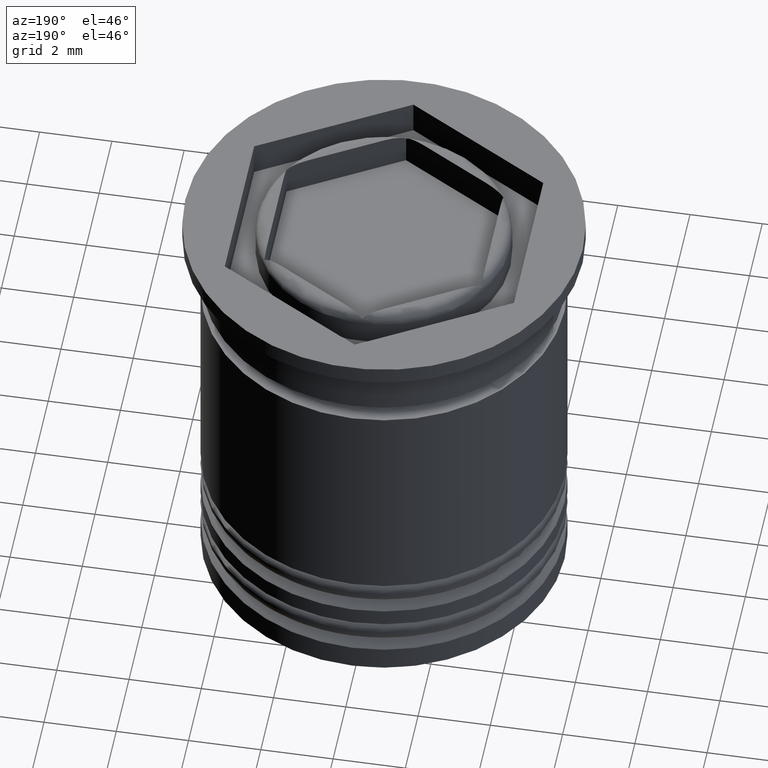
[diagram: clean part render]
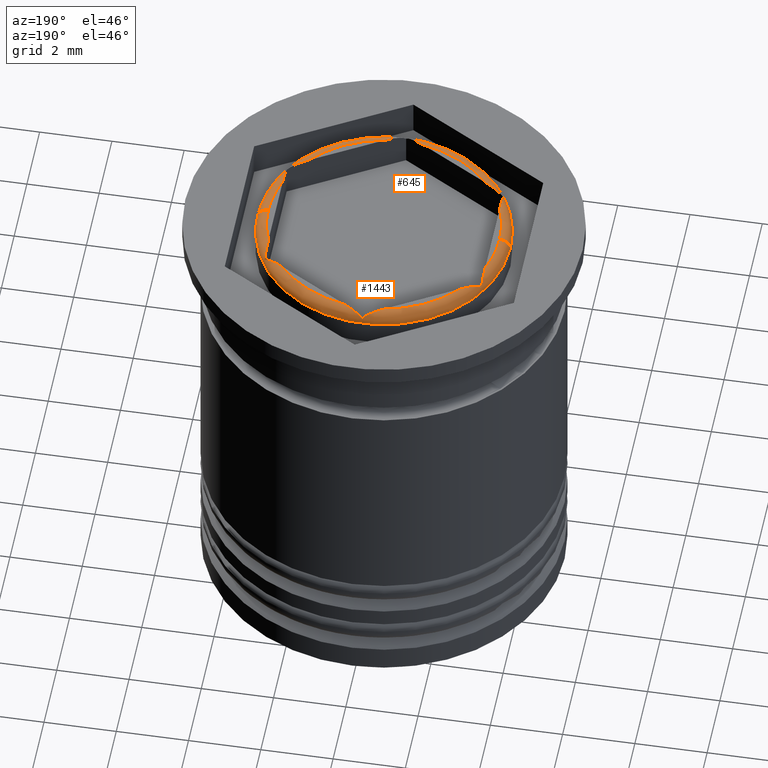
[diagram: same view with one multi-face feature highlighted, each face labeled with its STEP entity id]
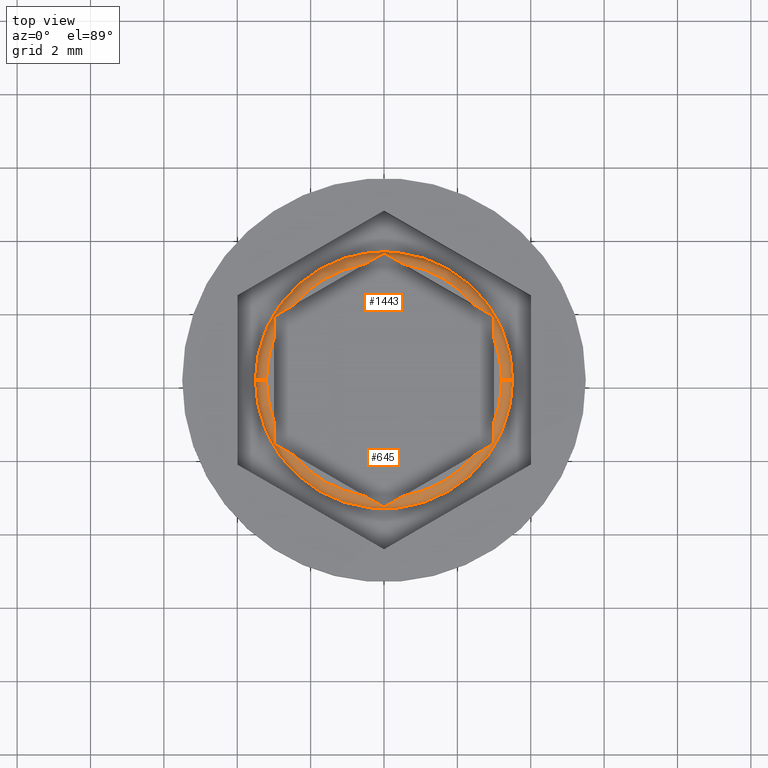
[diagram: same view with one multi-face feature highlighted, each face labeled with its STEP entity id]
A machine part, auxiliary view. The highlighted faces form ONE feature: a constant-radius fillet chain: 2 tangent blend faces with common blend radius 0.3 mm. The faces share edges in the B-rep.
A second angle (top view) of the same feature is appended — it is thin or edge-on in the first view.
Their STEP definitions:
[1] entity #1443 (Torus):
#18 = CARTESIAN_POINT ( 'NONE',  ( -2.652575849777251804, 1.932636234222957494, -0.006590008935844869110 ) ) ;
#19 = EDGE_LOOP ( 'NONE', ( #35, #1768, #1431, #159, #1466, #1972, #477, #125, #1951, #1341, #999, #1207, #974 ) ) ;
#21 = CARTESIAN_POINT ( 'NONE',  ( 0.03488713331826957115, 3.443959519325197949, -0.1203145750809056364 ) ) ;
#34 = CARTESIAN_POINT ( 'NONE',  ( 0.3474241502227468081, 3.263516188483674973, -0.006590008935845257688 ) ) ;
#35 = ORIENTED_EDGE ( 'NONE', *, *, #711, .F. ) ;
#43 = EDGE_CURVE ( 'NONE', #121, #774, #1318, .T. ) ;
#106 = AXIS2_PLACEMENT_3D ( 'NONE', #362, #689, #968 ) ;
#117 = DIRECTION ( 'NONE',  ( -0.000000000000000000, -0.000000000000000000, 1.000000000000000000 ) ) ;
#121 = VERTEX_POINT ( 'NONE', #823 ) ;
#125 = ORIENTED_EDGE ( 'NONE', *, *, #552, .F. ) ;
#137 = CARTESIAN_POINT ( 'NONE',  ( -3.000000000000000000, 1.732050807568877859, -0.1576963216159549264 ) ) ;
#159 = ORIENTED_EDGE ( 'NONE', *, *, #1407, .F. ) ;
#164 = CARTESIAN_POINT ( 'NONE',  ( 3.000000000000001332, 1.113552872566002216, 0.000000000000000000 ) ) ;
#166 = CARTESIAN_POINT ( 'NONE',  ( -0.1639584821700014183, 3.369440141320983351, -0.05299204151133352775 ) ) ;
#177 = AXIS2_PLACEMENT_3D ( 'NONE', #728, #441, #718 ) ;
#244 = VERTEX_POINT ( 'NONE', #1247 ) ;
#248 = CARTESIAN_POINT ( 'NONE',  ( 2.464365076099294782, 2.041299775070314571, 0.000000000000000000 ) ) ;
#256 = DIRECTION ( 'NONE',  ( 1.000000000000000000, 0.000000000000000000, 0.000000000000000000 ) ) ;
#260 = CARTESIAN_POINT ( 'NONE',  ( 3.000000000000001776, 1.691766615943763430, -0.1203145750809069270 ) ) ;
#267 = CARTESIAN_POINT ( 'NONE',  ( -3.000000000000000444, 1.643839225324840614, -0.09422876642215764764 ) ) ;
#284 = VERTEX_POINT ( 'NONE', #671 ) ;
#306 = CARTESIAN_POINT ( 'NONE',  ( 0.07687941269016514145, 3.419715265525948844, -0.09397729767315267380 ) ) ;
#307 = CARTESIAN_POINT ( 'NONE',  ( 3.000000000000000888, 1.222256277267161462, -9.529120656610874963E-19 ) ) ;
#317 = CARTESIAN_POINT ( 'NONE',  ( -0.07639347113135709633, 3.419995824015736208, -0.09422876642215748111 ) ) ;
#332 = EDGE_CURVE ( 'NONE', #1758, #2023, #979, .T. ) ;
#344 = CARTESIAN_POINT ( 'NONE',  ( -2.464365076099295671, 2.041299775070314126, 0.000000000000000000 ) ) ;
#362 = CARTESIAN_POINT ( 'NONE',  ( 0.000000000000000000, 0.000000000000000000, 0.000000000000000000 ) ) ;
#393 = CARTESIAN_POINT ( 'NONE',  ( 0.000000000000000000, 0.000000000000000000, 0.000000000000000000 ) ) ;
#415 = CARTESIAN_POINT ( 'NONE',  ( -3.000000000000000000, 1.732050807568877859, -0.1576963216159549264 ) ) ;
#420 = DIRECTION ( 'NONE',  ( 1.224646799147353207E-16, 1.000000000000000000, 0.000000000000000000 ) ) ;
#441 = DIRECTION ( 'NONE',  ( -0.000000000000000000, -0.000000000000000000, 1.000000000000000000 ) ) ;
#444 = CARTESIAN_POINT ( 'NONE',  ( 3.000000000000002220, 1.643278108345263666, -0.09397729767315378402 ) ) ;
#477 = ORIENTED_EDGE ( 'NONE', *, *, #816, .F. ) ;
#506 = AXIS2_PLACEMENT_3D ( 'NONE', #393, #1291, #544 ) ;
#522 = CARTESIAN_POINT ( 'NONE',  ( -2.790961897719603346, 1.852739012191353840, -0.03872414846243798364 ) ) ;
#527 = DIRECTION ( 'NONE',  ( 1.000000000000000000, 0.000000000000000000, 0.000000000000000000 ) ) ;
#544 = DIRECTION ( 'NONE',  ( 1.000000000000000000, 0.000000000000000000, 0.000000000000000000 ) ) ;
#552 = EDGE_CURVE ( 'NONE', #591, #284, #1094, .T. ) ;
#553 = CARTESIAN_POINT ( 'NONE',  ( -3.200000000000000622, 3.918869757271530953E-16, -0.2999999999999999334 ) ) ;
#587 = CARTESIAN_POINT ( 'NONE',  ( 3.000000000000001776, 1.542814913083275785, -0.05305027761685811999 ) ) ;
#591 = VERTEX_POINT ( 'NONE', #871 ) ;
#598 = B_SPLINE_CURVE_WITH_KNOTS ( 'NONE', 3,
 ( #1297, #1964, #18, #522, #721, #1846, #701, #1510 ),
 .UNSPECIFIED., .F., .F.,
 ( 4, 2, 2, 4 ),
 ( 1.693691732042781777E-20, 0.0003251077594065942926, 0.0004876616391098914389, 0.0006502155188131885852 ),
 .UNSPECIFIED. ) ;
#612 = VERTEX_POINT ( 'NONE', #983 ) ;
#635 = CIRCLE ( 'NONE', #1820, 3.200000000000000622 ) ;
#671 = CARTESIAN_POINT ( 'NONE',  ( -2.168404344971008868E-16, 3.464101615137754830, -0.1576963216159549264 ) ) ;
#689 = DIRECTION ( 'NONE',  ( -0.000000000000000000, -0.000000000000000000, 1.000000000000000000 ) ) ;
#701 = CARTESIAN_POINT ( 'NONE',  ( -2.965112866681730797, 1.752192903381435851, -0.1203145750809058168 ) ) ;
#711 = EDGE_CURVE ( 'NONE', #781, #612, #1849, .T. ) ;
#718 = DIRECTION ( 'NONE',  ( 1.000000000000000000, 0.000000000000000000, 0.000000000000000000 ) ) ;
#721 = CARTESIAN_POINT ( 'NONE',  ( -2.836116908067597198, 1.826668754811678452, -0.05305027761685764814 ) ) ;
#728 = CARTESIAN_POINT ( 'NONE',  ( 0.000000000000000000, 0.000000000000000000, 0.000000000000000000 ) ) ;
#745 = CARTESIAN_POINT ( 'NONE',  ( 3.000000000000001776, 1.732050807568877415, -0.1576963216159583958 ) ) ;
#763 = B_SPLINE_CURVE_WITH_KNOTS ( 'NONE', 3,
 ( #745, #1221, #1071, #1838, #1019, #1729, #1882, #248 ),
 .UNSPECIFIED., .F., .F.,
 ( 4, 2, 2, 4 ),
 ( 1.355252715606880543E-19, 0.0001622701831771354369, 0.0003245403663542707111, 0.0006490807327085401212 ),
 .UNSPECIFIED. ) ;
#774 = VERTEX_POINT ( 'NONE', #344 ) ;
#779 = CARTESIAN_POINT ( 'NONE',  ( -0.4414355163307774332, 3.209238700954318624, 8.506328372801310169E-16 ) ) ;
#781 = VERTEX_POINT ( 'NONE', #1769 ) ;
#787 = CARTESIAN_POINT ( 'NONE',  ( -2.168404344971008868E-16, 3.464101615137754830, -0.1576963216159549264 ) ) ;
#816 = EDGE_CURVE ( 'NONE', #284, #121, #1317, .T. ) ;
#823 = CARTESIAN_POINT ( 'NONE',  ( -0.5356349239007045515, 3.154852647636318785, 0.000000000000000000 ) ) ;
#859 = DIRECTION ( 'NONE',  ( 1.000000000000000000, 0.000000000000000000, 0.000000000000000000 ) ) ;
#871 = CARTESIAN_POINT ( 'NONE',  ( 0.5356349239007047736, 3.154852647636318341, 0.000000000000000000 ) ) ;
#874 = CARTESIAN_POINT ( 'NONE',  ( 3.000000000000001776, 1.732050807568877415, -0.1576963216159583958 ) ) ;
#890 = CARTESIAN_POINT ( 'NONE',  ( -3.000000000000000888, 1.490614006399477720, -0.03872241999869861090 ) ) ;
#892 = FACE_OUTER_BOUND ( 'NONE', #19, .T. ) ;
#948 = VERTEX_POINT ( 'NONE', #1319 ) ;
#958 = AXIS2_PLACEMENT_3D ( 'NONE', #1891, #1013, #859 ) ;
#962 = CARTESIAN_POINT ( 'NONE',  ( 3.000000000000001332, 1.113552872566002216, 0.000000000000000000 ) ) ;
#968 = DIRECTION ( 'NONE',  ( 1.000000000000000000, 0.000000000000000000, 0.000000000000000000 ) ) ;
#974 = ORIENTED_EDGE ( 'NONE', *, *, #1680, .F. ) ;
#979 = CIRCLE ( 'NONE', #106, 3.200000000000000622 ) ;
#983 = CARTESIAN_POINT ( 'NONE',  ( 3.500000000000000444, 4.286263797015737088E-16, -0.2999999999999999334 ) ) ;
#999 = ORIENTED_EDGE ( 'NONE', *, *, #1546, .F. ) ;
#1013 = DIRECTION ( 'NONE',  ( -0.000000000000000000, -0.000000000000000000, 1.000000000000000000 ) ) ;
#1019 = CARTESIAN_POINT ( 'NONE',  ( 2.790909596778847757, 1.852769208153578040, -0.03872241999869915213 ) ) ;
#1032 = DIRECTION ( 'NONE',  ( -1.000000000000000000, 1.224646799147353207E-16, 0.000000000000000000 ) ) ;
#1051 = DIRECTION ( 'NONE',  ( 0.000000000000000000, 0.000000000000000000, -1.000000000000000000 ) ) ;
#1054 = EDGE_CURVE ( 'NONE', #244, #1685, #763, .T. ) ;
#1071 = CARTESIAN_POINT ( 'NONE',  ( 2.923606528868645249, 1.776156598690896038, -0.09422876642215941012 ) ) ;
#1088 = EDGE_CURVE ( 'NONE', #774, #1743, #598, .T. ) ;
#1094 = B_SPLINE_CURVE_WITH_KNOTS ( 'NONE', 3,
 ( #1771, #1440, #34, #1277, #1736, #306, #21, #1400 ),
 .UNSPECIFIED., .F., .F.,
 ( 4, 2, 2, 4 ),
 ( 7.842007300076290791E-19, 0.0003251077594065945636, 0.0004876616391098912220, 0.0006502155188131878262 ),
 .UNSPECIFIED. ) ;
#1135 = EDGE_CURVE ( 'NONE', #781, #948, #1634, .T. ) ;
#1160 = B_SPLINE_CURVE_WITH_KNOTS ( 'NONE', 3,
 ( #137, #1691, #267, #1886, #890, #1383, #2050, #1525 ),
 .UNSPECIFIED., .F., .F.,
 ( 4, 2, 2, 4 ),
 ( 2.710505431213761085E-19, 0.0001622701831771344069, 0.0003245403663542685427, 0.0006490807327085360012 ),
 .UNSPECIFIED. ) ;
#1162 = AXIS2_PLACEMENT_3D ( 'NONE', #1340, #2010, #527 ) ;
#1207 = ORIENTED_EDGE ( 'NONE', *, *, #332, .F. ) ;
#1221 = CARTESIAN_POINT ( 'NONE',  ( 2.965006714095217877, 1.752254190605834872, -0.1202008320270856884 ) ) ;
#1247 = CARTESIAN_POINT ( 'NONE',  ( 3.000000000000001776, 1.732050807568877415, -0.1576963216159583958 ) ) ;
#1275 = CARTESIAN_POINT ( 'NONE',  ( -0.2090904032211537422, 3.343383214553053762, -0.03872241999869841661 ) ) ;
#1277 = CARTESIAN_POINT ( 'NONE',  ( 0.2090381022803965150, 3.343413410515278628, -0.03872414846243826814 ) ) ;
#1291 = DIRECTION ( 'NONE',  ( -0.000000000000000000, -0.000000000000000000, 1.000000000000000000 ) ) ;
#1297 = CARTESIAN_POINT ( 'NONE',  ( -2.464365076099295671, 2.041299775070314126, 0.000000000000000000 ) ) ;
#1317 = B_SPLINE_CURVE_WITH_KNOTS ( 'NONE', 3,
 ( #787, #1410, #317, #166, #1275, #1912, #779, #1416 ),
 .UNSPECIFIED., .F., .F.,
 ( 4, 2, 2, 4 ),
 ( 2.825623115728058530E-19, 0.0001622701831771341629, 0.0003245403663542680548, 0.0006490807327085364349 ),
 .UNSPECIFIED. ) ;
#1318 = CIRCLE ( 'NONE', #506, 3.200000000000000622 ) ;
#1319 = CARTESIAN_POINT ( 'NONE',  ( -3.200000000000000622, 4.102566777143633281E-16, 0.000000000000000000 ) ) ;
#1340 = CARTESIAN_POINT ( 'NONE',  ( 0.000000000000000000, 0.000000000000000000, -0.2999999999999999334 ) ) ;
#1341 = ORIENTED_EDGE ( 'NONE', *, *, #1054, .F. ) ;
#1366 = CIRCLE ( 'NONE', #177, 3.200000000000000622 ) ;
#1383 = CARTESIAN_POINT ( 'NONE',  ( -2.999999999999999556, 1.331620664969456858, -0.006718191919573731491 ) ) ;
#1400 = CARTESIAN_POINT ( 'NONE',  ( -2.168404344971008868E-16, 3.464101615137754830, -0.1576963216159549264 ) ) ;
#1401 = AXIS2_PLACEMENT_3D ( 'NONE', #553, #420, #1032 ) ;
#1402 = CIRCLE ( 'NONE', #1679, 0.2999999999999999334 ) ;
#1407 = EDGE_CURVE ( 'NONE', #1743, #1805, #1160, .T. ) ;
#1410 = CARTESIAN_POINT ( 'NONE',  ( -0.03499328590478502365, 3.443898232100797596, -0.1202008320270840092 ) ) ;
#1416 = CARTESIAN_POINT ( 'NONE',  ( -0.5356349239007045515, 3.154852647636318785, 0.000000000000000000 ) ) ;
#1431 = ORIENTED_EDGE ( 'NONE', *, *, #1954, .F. ) ;
#1440 = CARTESIAN_POINT ( 'NONE',  ( 0.4414950139516400918, 3.209204349986899185, -0.000000000000000000 ) ) ;
#1443 = ADVANCED_FACE ( 'NONE', ( #892 ), #2069, .T. ) ;
#1466 = ORIENTED_EDGE ( 'NONE', *, *, #1088, .F. ) ;
#1477 = CARTESIAN_POINT ( 'NONE',  ( 3.000000000000000888, 1.330879954260715703, -0.006590008935845116309 ) ) ;
#1510 = CARTESIAN_POINT ( 'NONE',  ( -3.000000000000000000, 1.732050807568877859, -0.1576963216159549264 ) ) ;
#1525 = CARTESIAN_POINT ( 'NONE',  ( -3.000000000000000000, 1.113552872566005769, 0.000000000000000000 ) ) ;
#1546 = EDGE_CURVE ( 'NONE', #2023, #244, #1907, .T. ) ;
#1557 = EDGE_CURVE ( 'NONE', #1685, #591, #1366, .T. ) ;
#1634 = CIRCLE ( 'NONE', #1401, 0.2999999999999999334 ) ;
#1661 = CARTESIAN_POINT ( 'NONE',  ( 3.000000000000002220, 1.490674398323925898, -0.03872414846243867059 ) ) ;
#1679 = AXIS2_PLACEMENT_3D ( 'NONE', #1987, #1858, #1051 ) ;
#1680 = EDGE_CURVE ( 'NONE', #612, #1758, #1402, .T. ) ;
#1683 = CARTESIAN_POINT ( 'NONE',  ( 3.200000000000000622, 0.000000000000000000, 0.000000000000000000 ) ) ;
#1685 = VERTEX_POINT ( 'NONE', #2013 ) ;
#1691 = CARTESIAN_POINT ( 'NONE',  ( -3.000000000000000444, 1.691644041494963835, -0.1202008320270840647 ) ) ;
#1729 = CARTESIAN_POINT ( 'NONE',  ( 2.653217324067877136, 1.932265878868588027, -0.006718191919573857258 ) ) ;
#1736 = CARTESIAN_POINT ( 'NONE',  ( 0.1638830919324023860, 3.369483667894954682, -0.05305027761685784243 ) ) ;
#1743 = VERTEX_POINT ( 'NONE', #415 ) ;
#1758 = VERTEX_POINT ( 'NONE', #1683 ) ;
#1768 = ORIENTED_EDGE ( 'NONE', *, *, #1135, .T. ) ;
#1769 = CARTESIAN_POINT ( 'NONE',  ( -3.500000000000000444, 0.000000000000000000, -0.2999999999999999334 ) ) ;
#1771 = CARTESIAN_POINT ( 'NONE',  ( 0.5356349239007047736, 3.154852647636318341, 0.000000000000000000 ) ) ;
#1805 = VERTEX_POINT ( 'NONE', #2053 ) ;
#1820 = AXIS2_PLACEMENT_3D ( 'NONE', #1974, #117, #256 ) ;
#1838 = CARTESIAN_POINT ( 'NONE',  ( 2.836041517830000469, 1.826712281385649339, -0.05299204151133455470 ) ) ;
#1846 = CARTESIAN_POINT ( 'NONE',  ( -2.923120587309835372, 1.776437157180684512, -0.09397729767315254890 ) ) ;
#1849 = CIRCLE ( 'NONE', #1162, 3.500000000000000444 ) ;
#1858 = DIRECTION ( 'NONE',  ( 0.000000000000000000, -1.000000000000000000, 0.000000000000000000 ) ) ;
#1882 = CARTESIAN_POINT ( 'NONE',  ( 2.558564483669223399, 1.986913721752314954, 8.261394678886942969E-16 ) ) ;
#1886 = CARTESIAN_POINT ( 'NONE',  ( -3.000000000000000444, 1.542727859935333123, -0.05299204151133367346 ) ) ;
#1891 = CARTESIAN_POINT ( 'NONE',  ( 0.000000000000000000, 0.000000000000000000, -0.2999999999999999334 ) ) ;
#1907 = B_SPLINE_CURVE_WITH_KNOTS ( 'NONE', 3,
 ( #962, #307, #1477, #1661, #587, #444, #260, #874 ),
 .UNSPECIFIED., .F., .F.,
 ( 4, 2, 2, 4 ),
 ( 0.000000000000000000, 0.0003251077594065961899, 0.0004876616391098942578, 0.0006502155188131923799 ),
 .UNSPECIFIED. ) ;
#1912 = CARTESIAN_POINT ( 'NONE',  ( -0.3467826759321240293, 3.263886543838044663, -0.006718191919573663837 ) ) ;
#1951 = ORIENTED_EDGE ( 'NONE', *, *, #1557, .F. ) ;
#1954 = EDGE_CURVE ( 'NONE', #1805, #948, #635, .T. ) ;
#1964 = CARTESIAN_POINT ( 'NONE',  ( -2.558504986048359964, 1.986948072719734837, -1.905824131322174993E-18 ) ) ;
#1972 = ORIENTED_EDGE ( 'NONE', *, *, #43, .F. ) ;
#1974 = CARTESIAN_POINT ( 'NONE',  ( 0.000000000000000000, 0.000000000000000000, 0.000000000000000000 ) ) ;
#1987 = CARTESIAN_POINT ( 'NONE',  ( 3.200000000000000622, 0.000000000000000000, -0.2999999999999999334 ) ) ;
#2010 = DIRECTION ( 'NONE',  ( 0.000000000000000000, 0.000000000000000000, -1.000000000000000000 ) ) ;
#2013 = CARTESIAN_POINT ( 'NONE',  ( 2.464365076099294782, 2.041299775070314571, 0.000000000000000000 ) ) ;
#2023 = VERTEX_POINT ( 'NONE', #164 ) ;
#2050 = CARTESIAN_POINT ( 'NONE',  ( -2.999999999999999556, 1.222324979202006778, 8.752203214434849909E-16 ) ) ;
#2053 = CARTESIAN_POINT ( 'NONE',  ( -3.000000000000000000, 1.113552872566005769, 0.000000000000000000 ) ) ;
#2069 = TOROIDAL_SURFACE ( 'NONE', #958, 3.200000000000000622, 0.2999999999999999889 ) ;
[2] entity #645 (Torus):
#27 = EDGE_CURVE ( 'NONE', #448, #1569, #1884, .T. ) ;
#72 = AXIS2_PLACEMENT_3D ( 'NONE', #1310, #1448, #1174 ) ;
#76 = CARTESIAN_POINT ( 'NONE',  ( 0.000000000000000000, 0.000000000000000000, 0.000000000000000000 ) ) ;
#88 = CARTESIAN_POINT ( 'NONE',  ( 0.000000000000000000, 0.000000000000000000, 0.000000000000000000 ) ) ;
#104 = CARTESIAN_POINT ( 'NONE',  ( -3.000000000000000000, -1.732050807568877637, -0.1576963216159549264 ) ) ;
#108 = CARTESIAN_POINT ( 'NONE',  ( -2.558564483669223844, -1.986913721752314066, 8.548680020164027158E-16 ) ) ;
#122 = B_SPLINE_CURVE_WITH_KNOTS ( 'NONE', 3,
 ( #2073, #1562, #1438, #1258, #1762, #952, #945, #1588 ),
 .UNSPECIFIED., .F., .F.,
 ( 4, 2, 2, 4 ),
 ( 0.000000000000000000, 0.0003251077594065936421, 0.0004876616391098904631, 0.0006502155188131872841 ),
 .UNSPECIFIED. ) ;
#124 = CARTESIAN_POINT ( 'NONE',  ( -0.3474241502227461420, -3.263516188483676306, -0.006590008935845222127 ) ) ;
#158 = CARTESIAN_POINT ( 'NONE',  ( 2.999999999999999556, -1.691644041494964057, -0.1202008320270846059 ) ) ;
#165 = EDGE_CURVE ( 'NONE', #1569, #1131, #1399, .T. ) ;
#169 = CARTESIAN_POINT ( 'NONE',  ( 3.000000000000000000, -1.490614006399477054, -0.03872241999869861784 ) ) ;
#175 = CIRCLE ( 'NONE', #318, 3.200000000000000622 ) ;
#185 = ORIENTED_EDGE ( 'NONE', *, *, #165, .F. ) ;
#254 = CARTESIAN_POINT ( 'NONE',  ( 0.2090904032211533814, -3.343383214553053762, -0.03872241999869840967 ) ) ;
#264 = CARTESIAN_POINT ( 'NONE',  ( -0.1638830919324019142, -3.369483667894954237, -0.05305027761685780774 ) ) ;
#266 = CARTESIAN_POINT ( 'NONE',  ( 2.790961897719602902, -1.852739012191353618, -0.03872414846243793507 ) ) ;
#286 = AXIS2_PLACEMENT_3D ( 'NONE', #1663, #675, #854 ) ;
#309 = CARTESIAN_POINT ( 'NONE',  ( 3.000000000000000444, -1.331620664969456858, -0.006718191919573728889 ) ) ;
#318 = AXIS2_PLACEMENT_3D ( 'NONE', #473, #336, #329 ) ;
#329 = DIRECTION ( 'NONE',  ( 1.000000000000000000, 0.000000000000000000, 0.000000000000000000 ) ) ;
#336 = DIRECTION ( 'NONE',  ( -0.000000000000000000, -0.000000000000000000, 1.000000000000000000 ) ) ;
#402 = ORIENTED_EDGE ( 'NONE', *, *, #1680, .T. ) ;
#408 = CARTESIAN_POINT ( 'NONE',  ( -0.5356349239007038854, -3.154852647636318785, 0.000000000000000000 ) ) ;
#412 = DIRECTION ( 'NONE',  ( 1.000000000000000000, 0.000000000000000000, 0.000000000000000000 ) ) ;
#420 = DIRECTION ( 'NONE',  ( 1.224646799147353207E-16, 1.000000000000000000, 0.000000000000000000 ) ) ;
#426 = CARTESIAN_POINT ( 'NONE',  ( 2.652575849777250916, -1.932636234222957938, -0.006590008935844975796 ) ) ;
#430 = ORIENTED_EDGE ( 'NONE', *, *, #27, .F. ) ;
#434 = DIRECTION ( 'NONE',  ( -0.000000000000000000, -0.000000000000000000, 1.000000000000000000 ) ) ;
#438 = VERTEX_POINT ( 'NONE', #104 ) ;
#448 = VERTEX_POINT ( 'NONE', #1368 ) ;
#473 = CARTESIAN_POINT ( 'NONE',  ( 0.000000000000000000, 0.000000000000000000, 0.000000000000000000 ) ) ;
#481 = ORIENTED_EDGE ( 'NONE', *, *, #1263, .F. ) ;
#500 = B_SPLINE_CURVE_WITH_KNOTS ( 'NONE', 3,
 ( #408, #877, #124, #2046, #264, #1181, #898, #1543 ),
 .UNSPECIFIED., .F., .F.,
 ( 4, 2, 2, 4 ),
 ( 8.766002519126559474E-19, 0.0003251077594065934252, 0.0004876616391098899752, 0.0006502155188131865252 ),
 .UNSPECIFIED. ) ;
#553 = CARTESIAN_POINT ( 'NONE',  ( -3.200000000000000622, 3.918869757271530953E-16, -0.2999999999999999334 ) ) ;
#565 = CARTESIAN_POINT ( 'NONE',  ( -2.965006714095214768, -1.752254190605834205, -0.1202008320270840647 ) ) ;
#576 = CARTESIAN_POINT ( 'NONE',  ( -2.464365076099296559, -2.041299775070313238, 0.000000000000000000 ) ) ;
#580 = CARTESIAN_POINT ( 'NONE',  ( 2.923120587309834928, -1.776437157180684290, -0.09397729767315236848 ) ) ;
#589 = EDGE_CURVE ( 'NONE', #819, #448, #1471, .T. ) ;
#604 = CARTESIAN_POINT ( 'NONE',  ( 0.1639584821700009465, -3.369440141320983351, -0.05299204151133353469 ) ) ;
#612 = VERTEX_POINT ( 'NONE', #983 ) ;
#628 = CARTESIAN_POINT ( 'NONE',  ( 3.000000000000000444, -1.643839225324841058, -0.09422876642215761989 ) ) ;
#639 = VERTEX_POINT ( 'NONE', #1163 ) ;
#645 = ADVANCED_FACE ( 'NONE', ( #1639 ), #1397, .T. ) ;
#675 = DIRECTION ( 'NONE',  ( 0.000000000000000000, 0.000000000000000000, -1.000000000000000000 ) ) ;
#682 = ORIENTED_EDGE ( 'NONE', *, *, #589, .F. ) ;
#722 = CARTESIAN_POINT ( 'NONE',  ( -2.790909596778845980, -1.852769208153577596, -0.03872241999869845130 ) ) ;
#739 = EDGE_CURVE ( 'NONE', #1076, #1228, #175, .T. ) ;
#742 = CARTESIAN_POINT ( 'NONE',  ( 2.464365076099294782, -2.041299775070314126, 0.000000000000000000 ) ) ;
#759 = EDGE_CURVE ( 'NONE', #1131, #639, #1198, .T. ) ;
#781 = VERTEX_POINT ( 'NONE', #1769 ) ;
#789 = EDGE_CURVE ( 'NONE', #1164, #438, #122, .T. ) ;
#795 = ORIENTED_EDGE ( 'NONE', *, *, #992, .F. ) ;
#806 = ORIENTED_EDGE ( 'NONE', *, *, #739, .F. ) ;
#811 = CARTESIAN_POINT ( 'NONE',  ( -3.000000000000000000, -1.113552872566005769, 0.000000000000000000 ) ) ;
#814 = ORIENTED_EDGE ( 'NONE', *, *, #1135, .F. ) ;
#819 = VERTEX_POINT ( 'NONE', #1575 ) ;
#828 = CIRCLE ( 'NONE', #1501, 3.200000000000000622 ) ;
#852 = ORIENTED_EDGE ( 'NONE', *, *, #1007, .F. ) ;
#854 = DIRECTION ( 'NONE',  ( 1.000000000000000000, 0.000000000000000000, 0.000000000000000000 ) ) ;
#877 = CARTESIAN_POINT ( 'NONE',  ( -0.4414950139516391481, -3.209204349986899629, -9.529120656610878815E-19 ) ) ;
#878 = CARTESIAN_POINT ( 'NONE',  ( 3.000000000000000000, -1.732050807568878081, -0.1576963216159566472 ) ) ;
#897 = CIRCLE ( 'NONE', #286, 3.500000000000000444 ) ;
#898 = CARTESIAN_POINT ( 'NONE',  ( -0.03488713331826946706, -3.443959519325197061, -0.1203145750809051784 ) ) ;
#911 = CARTESIAN_POINT ( 'NONE',  ( -2.836041517829999137, -1.826712281385650449, -0.05299204151133360408 ) ) ;
#918 = CARTESIAN_POINT ( 'NONE',  ( -2.168404344971008868E-16, -3.464101615137754830, -0.1576963216159549264 ) ) ;
#937 = CARTESIAN_POINT ( 'NONE',  ( 3.000000000000000444, -1.113552872566005103, 0.000000000000000000 ) ) ;
#945 = CARTESIAN_POINT ( 'NONE',  ( -3.000000000000000444, -1.691766615943763430, -0.1203145750809054837 ) ) ;
#948 = VERTEX_POINT ( 'NONE', #1319 ) ;
#952 = CARTESIAN_POINT ( 'NONE',  ( -3.000000000000000444, -1.643278108345263666, -0.09397729767315243787 ) ) ;
#973 = CARTESIAN_POINT ( 'NONE',  ( 0.3467826759321235852, -3.263886543838044663, -0.006718191919573667306 ) ) ;
#983 = CARTESIAN_POINT ( 'NONE',  ( 3.500000000000000444, 4.286263797015737088E-16, -0.2999999999999999334 ) ) ;
#992 = EDGE_CURVE ( 'NONE', #639, #1758, #828, .T. ) ;
#997 = CARTESIAN_POINT ( 'NONE',  ( 0.5356349239007043295, -3.154852647636318785, 0.000000000000000000 ) ) ;
#1003 = EDGE_CURVE ( 'NONE', #438, #1076, #1434, .T. ) ;
#1007 = EDGE_CURVE ( 'NONE', #948, #1164, #1722, .T. ) ;
#1032 = DIRECTION ( 'NONE',  ( -1.000000000000000000, 1.224646799147353207E-16, 0.000000000000000000 ) ) ;
#1051 = DIRECTION ( 'NONE',  ( 0.000000000000000000, 0.000000000000000000, -1.000000000000000000 ) ) ;
#1053 = EDGE_CURVE ( 'NONE', #1228, #819, #500, .T. ) ;
#1057 = CARTESIAN_POINT ( 'NONE',  ( 2.464365076099294782, -2.041299775070314126, 0.000000000000000000 ) ) ;
#1076 = VERTEX_POINT ( 'NONE', #576 ) ;
#1127 = AXIS2_PLACEMENT_3D ( 'NONE', #88, #1371, #1674 ) ;
#1131 = VERTEX_POINT ( 'NONE', #2005 ) ;
#1135 = EDGE_CURVE ( 'NONE', #781, #948, #1634, .T. ) ;
#1143 = DIRECTION ( 'NONE',  ( -0.000000000000000000, -0.000000000000000000, 1.000000000000000000 ) ) ;
#1163 = CARTESIAN_POINT ( 'NONE',  ( 3.000000000000000444, -1.113552872566005103, 0.000000000000000000 ) ) ;
#1164 = VERTEX_POINT ( 'NONE', #811 ) ;
#1174 = DIRECTION ( 'NONE',  ( 1.000000000000000000, 0.000000000000000000, 0.000000000000000000 ) ) ;
#1181 = CARTESIAN_POINT ( 'NONE',  ( -0.07687941269016497492, -3.419715265525947512, -0.09397729767315245175 ) ) ;
#1190 = CARTESIAN_POINT ( 'NONE',  ( -2.464365076099296559, -2.041299775070313238, 0.000000000000000000 ) ) ;
#1198 = B_SPLINE_CURVE_WITH_KNOTS ( 'NONE', 3,
 ( #1924, #158, #628, #1738, #169, #309, #1932, #937 ),
 .UNSPECIFIED., .F., .F.,
 ( 4, 2, 2, 4 ),
 ( 2.424349759030540154E-19, 0.0001622701831771344340, 0.0003245403663542685969, 0.0006490807327085369770 ),
 .UNSPECIFIED. ) ;
#1228 = VERTEX_POINT ( 'NONE', #1486 ) ;
#1258 = CARTESIAN_POINT ( 'NONE',  ( -3.000000000000000000, -1.490674398323927008, -0.03872414846243827508 ) ) ;
#1263 = EDGE_CURVE ( 'NONE', #612, #781, #897, .T. ) ;
#1310 = CARTESIAN_POINT ( 'NONE',  ( 0.000000000000000000, 0.000000000000000000, 0.000000000000000000 ) ) ;
#1319 = CARTESIAN_POINT ( 'NONE',  ( -3.200000000000000622, 4.102566777143633281E-16, 0.000000000000000000 ) ) ;
#1324 = CARTESIAN_POINT ( 'NONE',  ( 0.000000000000000000, 0.000000000000000000, -0.2999999999999999334 ) ) ;
#1336 = DIRECTION ( 'NONE',  ( 1.000000000000000000, 0.000000000000000000, 0.000000000000000000 ) ) ;
#1368 = CARTESIAN_POINT ( 'NONE',  ( 0.5356349239007043295, -3.154852647636318785, 0.000000000000000000 ) ) ;
#1371 = DIRECTION ( 'NONE',  ( -0.000000000000000000, -0.000000000000000000, 1.000000000000000000 ) ) ;
#1390 = CARTESIAN_POINT ( 'NONE',  ( 0.03499328590478460038, -3.443898232100797596, -0.1202008320270839953 ) ) ;
#1397 = TOROIDAL_SURFACE ( 'NONE', #1776, 3.200000000000000622, 0.2999999999999999889 ) ;
#1399 = B_SPLINE_CURVE_WITH_KNOTS ( 'NONE', 3,
 ( #1057, #1863, #426, #266, #1885, #580, #1872, #878 ),
 .UNSPECIFIED., .F., .F.,
 ( 4, 2, 2, 4 ),
 ( 1.239868400214633767E-20, 0.0003251077594065942384, 0.0004876616391098919810, 0.0006502155188131896694 ),
 .UNSPECIFIED. ) ;
#1401 = AXIS2_PLACEMENT_3D ( 'NONE', #553, #420, #1032 ) ;
#1402 = CIRCLE ( 'NONE', #1679, 0.2999999999999999334 ) ;
#1434 = B_SPLINE_CURVE_WITH_KNOTS ( 'NONE', 3,
 ( #1689, #565, #1701, #911, #722, #1531, #108, #1190 ),
 .UNSPECIFIED., .F., .F.,
 ( 4, 2, 2, 4 ),
 ( 5.114171419281513821E-19, 0.0001622701831771340003, 0.0003245403663542674585, 0.0006490807327085356760 ),
 .UNSPECIFIED. ) ;
#1438 = CARTESIAN_POINT ( 'NONE',  ( -3.000000000000000000, -1.330879954260717701, -0.006590008935845254219 ) ) ;
#1448 = DIRECTION ( 'NONE',  ( -0.000000000000000000, -0.000000000000000000, 1.000000000000000000 ) ) ;
#1471 = B_SPLINE_CURVE_WITH_KNOTS ( 'NONE', 3,
 ( #918, #1390, #2057, #604, #254, #973, #1623, #997 ),
 .UNSPECIFIED., .F., .F.,
 ( 4, 2, 2, 4 ),
 ( 2.825623115728058530E-19, 0.0001622701831771341900, 0.0003245403663542681090, 0.0006490807327085365433 ),
 .UNSPECIFIED. ) ;
#1486 = CARTESIAN_POINT ( 'NONE',  ( -0.5356349239007038854, -3.154852647636318785, 0.000000000000000000 ) ) ;
#1501 = AXIS2_PLACEMENT_3D ( 'NONE', #76, #434, #1336 ) ;
#1531 = CARTESIAN_POINT ( 'NONE',  ( -2.653217324067876248, -1.932265878868588249, -0.006718191919573805217 ) ) ;
#1543 = CARTESIAN_POINT ( 'NONE',  ( -2.168404344971008868E-16, -3.464101615137754830, -0.1576963216159549264 ) ) ;
#1562 = CARTESIAN_POINT ( 'NONE',  ( -3.000000000000000000, -1.222256277267164126, -1.905824131322174993E-18 ) ) ;
#1569 = VERTEX_POINT ( 'NONE', #742 ) ;
#1575 = CARTESIAN_POINT ( 'NONE',  ( -2.168404344971008868E-16, -3.464101615137754830, -0.1576963216159549264 ) ) ;
#1588 = CARTESIAN_POINT ( 'NONE',  ( -3.000000000000000000, -1.732050807568877637, -0.1576963216159549264 ) ) ;
#1596 = EDGE_LOOP ( 'NONE', ( #814, #481, #402, #795, #1867, #185, #430, #682, #2012, #806, #1793, #1871, #852 ) ) ;
#1623 = CARTESIAN_POINT ( 'NONE',  ( 0.4414355163307771002, -3.209238700954318624, 8.372920683608756880E-16 ) ) ;
#1634 = CIRCLE ( 'NONE', #1401, 0.2999999999999999334 ) ;
#1639 = FACE_OUTER_BOUND ( 'NONE', #1596, .T. ) ;
#1663 = CARTESIAN_POINT ( 'NONE',  ( 0.000000000000000000, 0.000000000000000000, -0.2999999999999999334 ) ) ;
#1674 = DIRECTION ( 'NONE',  ( 1.000000000000000000, 0.000000000000000000, 0.000000000000000000 ) ) ;
#1679 = AXIS2_PLACEMENT_3D ( 'NONE', #1987, #1858, #1051 ) ;
#1680 = EDGE_CURVE ( 'NONE', #612, #1758, #1402, .T. ) ;
#1683 = CARTESIAN_POINT ( 'NONE',  ( 3.200000000000000622, 0.000000000000000000, 0.000000000000000000 ) ) ;
#1689 = CARTESIAN_POINT ( 'NONE',  ( -3.000000000000000000, -1.732050807568877637, -0.1576963216159549264 ) ) ;
#1701 = CARTESIAN_POINT ( 'NONE',  ( -2.923606528868643473, -1.776156598690896704, -0.09422876642215745335 ) ) ;
#1722 = CIRCLE ( 'NONE', #1127, 3.200000000000000622 ) ;
#1738 = CARTESIAN_POINT ( 'NONE',  ( 3.000000000000000444, -1.542727859935332901, -0.05299204151133359714 ) ) ;
#1758 = VERTEX_POINT ( 'NONE', #1683 ) ;
#1762 = CARTESIAN_POINT ( 'NONE',  ( -3.000000000000000444, -1.542814913083276451, -0.05305027761685762039 ) ) ;
#1769 = CARTESIAN_POINT ( 'NONE',  ( -3.500000000000000444, 0.000000000000000000, -0.2999999999999999334 ) ) ;
#1776 = AXIS2_PLACEMENT_3D ( 'NONE', #1324, #1143, #412 ) ;
#1793 = ORIENTED_EDGE ( 'NONE', *, *, #1003, .F. ) ;
#1858 = DIRECTION ( 'NONE',  ( 0.000000000000000000, -1.000000000000000000, 0.000000000000000000 ) ) ;
#1863 = CARTESIAN_POINT ( 'NONE',  ( 2.558504986048359964, -1.986948072719735281, -0.000000000000000000 ) ) ;
#1867 = ORIENTED_EDGE ( 'NONE', *, *, #759, .F. ) ;
#1871 = ORIENTED_EDGE ( 'NONE', *, *, #789, .F. ) ;
#1872 = CARTESIAN_POINT ( 'NONE',  ( 2.965112866681731241, -1.752192903381435629, -0.1203145750809061498 ) ) ;
#1884 = CIRCLE ( 'NONE', #72, 3.200000000000000622 ) ;
#1885 = CARTESIAN_POINT ( 'NONE',  ( 2.836116908067598086, -1.826668754811678452, -0.05305027761685754406 ) ) ;
#1924 = CARTESIAN_POINT ( 'NONE',  ( 3.000000000000000000, -1.732050807568878081, -0.1576963216159566472 ) ) ;
#1932 = CARTESIAN_POINT ( 'NONE',  ( 3.000000000000000888, -1.222324979202006334, 7.858348168151771396E-16 ) ) ;
#1987 = CARTESIAN_POINT ( 'NONE',  ( 3.200000000000000622, 0.000000000000000000, -0.2999999999999999334 ) ) ;
#2005 = CARTESIAN_POINT ( 'NONE',  ( 3.000000000000000000, -1.732050807568878081, -0.1576963216159566472 ) ) ;
#2012 = ORIENTED_EDGE ( 'NONE', *, *, #1053, .F. ) ;
#2046 = CARTESIAN_POINT ( 'NONE',  ( -0.2090381022803962097, -3.343413410515279516, -0.03872414846243828201 ) ) ;
#2057 = CARTESIAN_POINT ( 'NONE',  ( 0.07639347113135665224, -3.419995824015736208, -0.09422876642215748111 ) ) ;
#2073 = CARTESIAN_POINT ( 'NONE',  ( -3.000000000000000000, -1.113552872566005769, 0.000000000000000000 ) ) ;